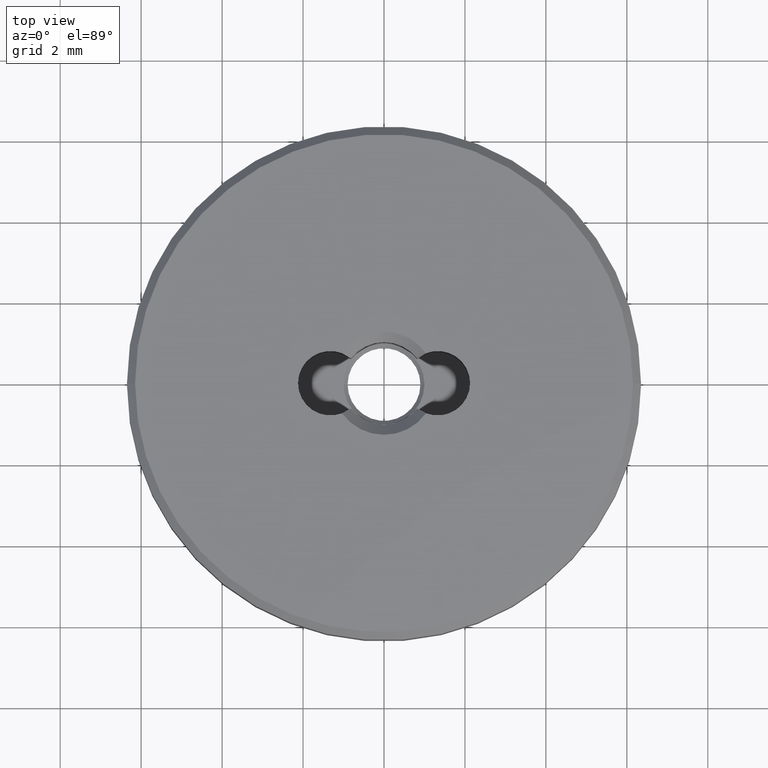
[diagram: clean part render]
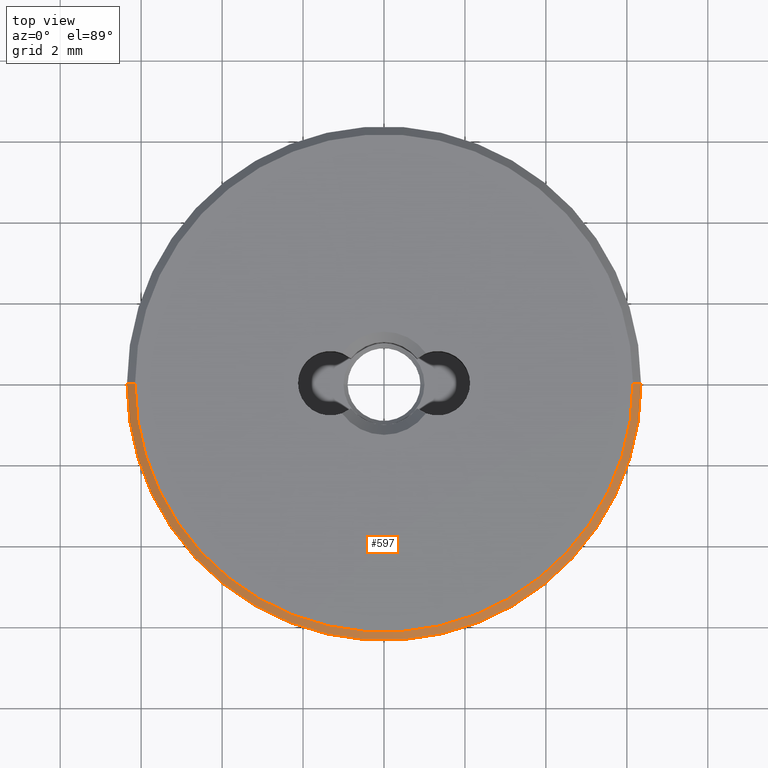
[diagram: same view with one face highlighted and labeled with its STEP entity id]
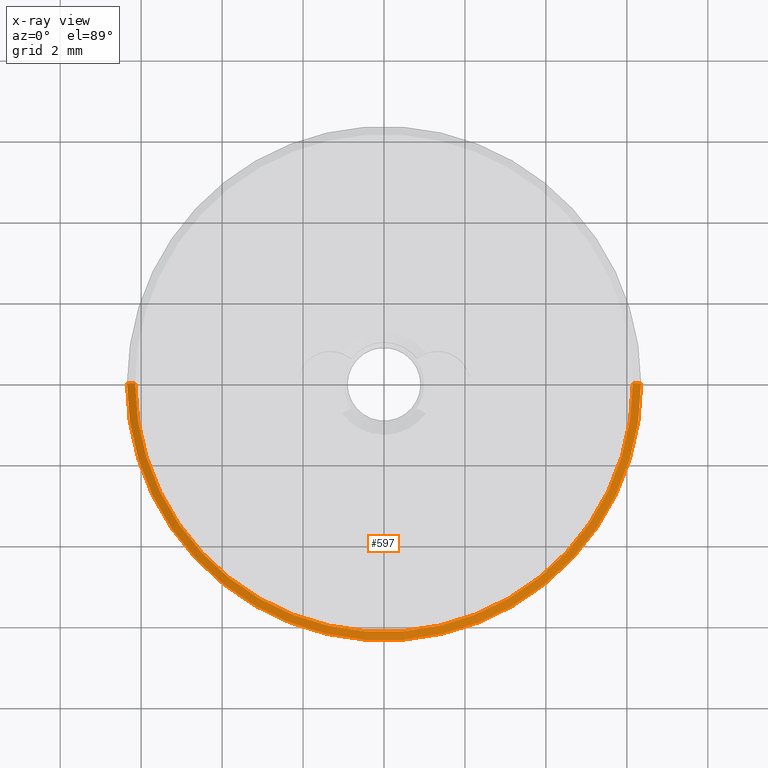
[diagram: x-ray of the same camera — body ghosted, the highlighted face saturated]
A machine part, top view. The second image highlights one B-rep face of the part: STEP entity #597.
The next image is the same camera in x-ray: the body ghosted, the highlighted face saturated — about 0% of this face is hidden behind the body in this view.
In plain terms, the highlighted conical surface has half-angle 45 deg.
Its self-contained STEP definition (entity closure, byte-faithful):
#2 = AXIS2_PLACEMENT_3D ( 'NONE', #662, #394, #171 ) ;
#26 = ORIENTED_EDGE ( 'NONE', *, *, #645, .F. ) ;
#50 = ORIENTED_EDGE ( 'NONE', *, *, #166, .F. ) ;
#68 = ORIENTED_EDGE ( 'NONE', *, *, #241, .F. ) ;
#96 = ORIENTED_EDGE ( 'NONE', *, *, #493, .T. ) ;
#135 = CARTESIAN_POINT ( 'NONE',  ( -6.149999999999999467, 0.000000000000000000, 2.200000000000000178 ) ) ;
#144 = CARTESIAN_POINT ( 'NONE',  ( -6.149999999999999467, 0.000000000000000000, 2.200000000000000178 ) ) ;
#150 = VERTEX_POINT ( 'NONE', #343 ) ;
#159 = CONICAL_SURFACE ( 'NONE', #557, 6.149999999999999467, 0.7853981633974503884 ) ;
#166 = EDGE_CURVE ( 'NONE', #328, #292, #543, .T. ) ;
#167 = DIRECTION ( 'NONE',  ( 1.000000000000000000, 0.000000000000000000, 0.000000000000000000 ) ) ;
#170 = DIRECTION ( 'NONE',  ( 0.000000000000000000, 0.000000000000000000, -1.000000000000000000 ) ) ;
#171 = DIRECTION ( 'NONE',  ( 1.000000000000000000, 0.000000000000000000, 0.000000000000000000 ) ) ;
#219 = CIRCLE ( 'NONE', #618, 6.349999999999999645 ) ;
#225 = CARTESIAN_POINT ( 'NONE',  ( -6.349999999999999645, 0.000000000000000000, 2.000000000000000444 ) ) ;
#241 = EDGE_CURVE ( 'NONE', #292, #150, #291, .T. ) ;
#267 = VECTOR ( 'NONE', #348, 1000.000000000000000 ) ;
#272 = DIRECTION ( 'NONE',  ( -0.7071067811865490160, 0.000000000000000000, -0.7071067811865459074 ) ) ;
#291 = LINE ( 'NONE', #566, #267 ) ;
#292 = VERTEX_POINT ( 'NONE', #628 ) ;
#328 = VERTEX_POINT ( 'NONE', #135 ) ;
#334 = DIRECTION ( 'NONE',  ( 0.000000000000000000, 0.000000000000000000, -1.000000000000000000 ) ) ;
#343 = CARTESIAN_POINT ( 'NONE',  ( 6.349999999999999645, 7.776507174585692163E-16, 2.000000000000000444 ) ) ;
#348 = DIRECTION ( 'NONE',  ( 0.7071067811865490160, 8.659560562354950115E-17, -0.7071067811865459074 ) ) ;
#364 = LINE ( 'NONE', #144, #570 ) ;
#392 = DIRECTION ( 'NONE',  ( -1.000000000000000000, 0.000000000000000000, 0.000000000000000000 ) ) ;
#394 = DIRECTION ( 'NONE',  ( 0.000000000000000000, 0.000000000000000000, 1.000000000000000000 ) ) ;
#448 = FACE_OUTER_BOUND ( 'NONE', #652, .T. ) ;
#484 = CARTESIAN_POINT ( 'NONE',  ( 0.000000000000000000, 0.000000000000000000, 2.000000000000000444 ) ) ;
#493 = EDGE_CURVE ( 'NONE', #328, #598, #364, .T. ) ;
#543 = CIRCLE ( 'NONE', #2, 6.149999999999999467 ) ;
#557 = AXIS2_PLACEMENT_3D ( 'NONE', #599, #170, #392 ) ;
#566 = CARTESIAN_POINT ( 'NONE',  ( 6.149999999999999467, 7.531577814756219106E-16, 2.200000000000000178 ) ) ;
#570 = VECTOR ( 'NONE', #272, 1000.000000000000000 ) ;
#597 = ADVANCED_FACE ( 'NONE', ( #448 ), #159, .T. ) ;
#598 = VERTEX_POINT ( 'NONE', #225 ) ;
#599 = CARTESIAN_POINT ( 'NONE',  ( 0.000000000000000000, 0.000000000000000000, 2.200000000000000178 ) ) ;
#618 = AXIS2_PLACEMENT_3D ( 'NONE', #484, #334, #167 ) ;
#628 = CARTESIAN_POINT ( 'NONE',  ( 6.149999999999999467, 7.654042494670954648E-16, 2.200000000000000178 ) ) ;
#645 = EDGE_CURVE ( 'NONE', #150, #598, #219, .T. ) ;
#652 = EDGE_LOOP ( 'NONE', ( #68, #50, #96, #26 ) ) ;
#662 = CARTESIAN_POINT ( 'NONE',  ( 0.000000000000000000, 0.000000000000000000, 2.200000000000000178 ) ) ;